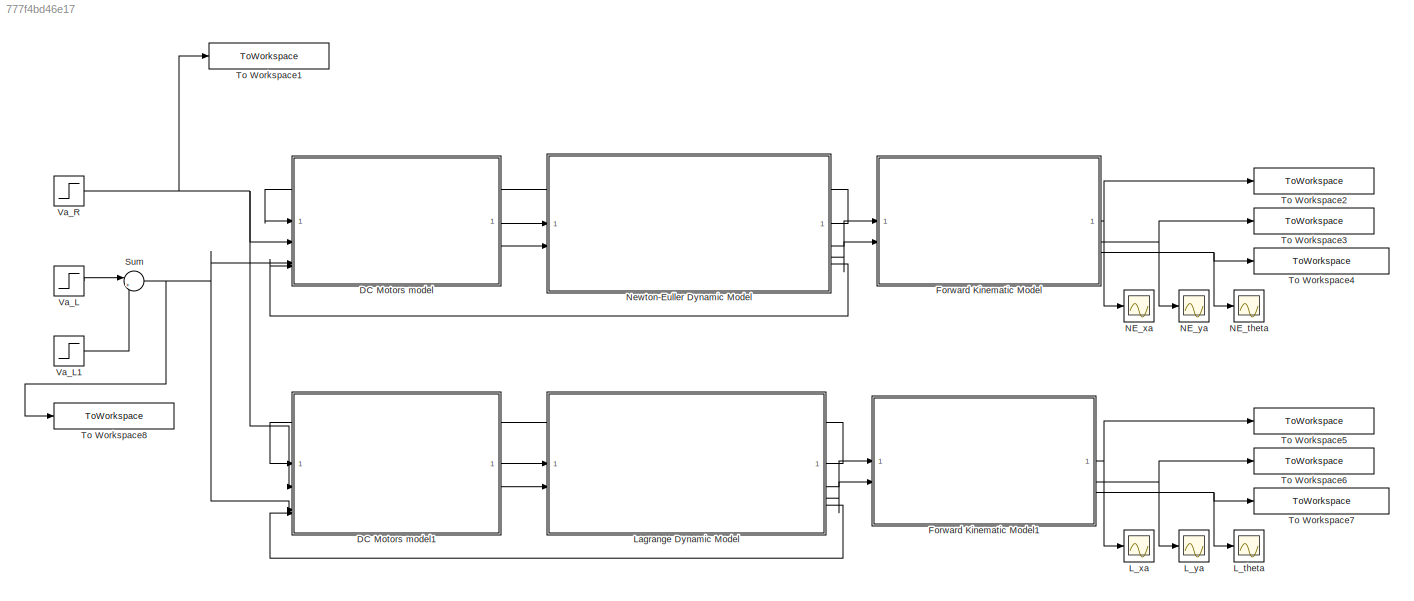
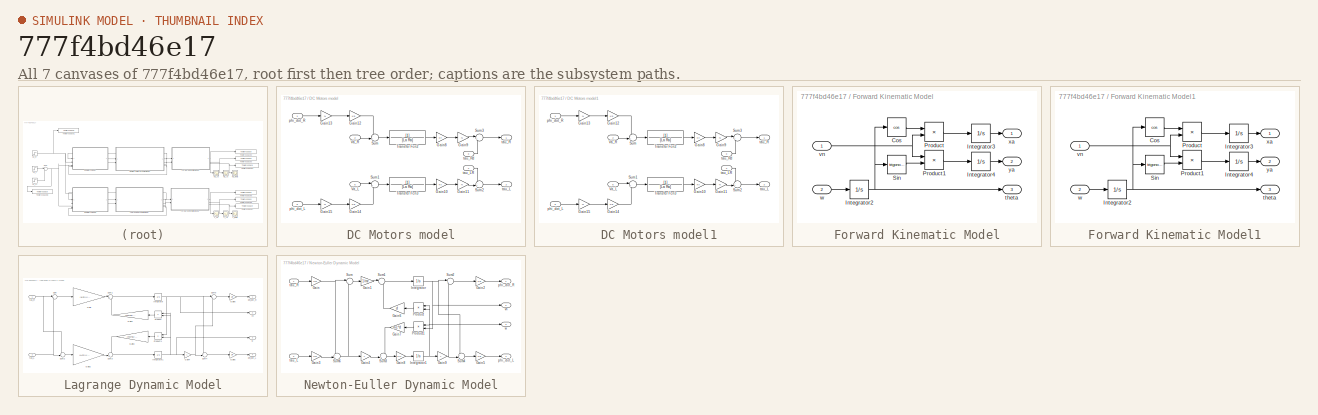
[diagram: thumbnail index - all 7 canvases of the model, root first then tree order]
MODEL slx_777f4bd46e17
KIND model
CONFIG AbsTol = auto
CONFIG EnableMultiTasking = off
CONFIG FixedStep = auto
CONFIG MaxStep = auto
CONFIG MinStep = auto
CONFIG RelTol = 1e-3
CONFIG SampleTimeConstraint = Unconstrained
CONFIG SolverName = VariableStepAuto
CONFIG StartTime = 0.0
CONFIG StopTime = 20
BLOCK [SubSystem] DC Motors model
BLOCK [Gain] DC Motors model/Gain10
  Gain = Kt
BLOCK [Gain] DC Motors model/Gain11
  Gain = N
BLOCK [Gain] DC Motors model/Gain12
  Gain = Kb
BLOCK [Gain] DC Motors model/Gain13
  Gain = N
BLOCK [Gain] DC Motors model/Gain14
  Gain = Kb
BLOCK [Gain] DC Motors model/Gain15
  Gain = N
BLOCK [Gain] DC Motors model/Gain8
  Gain = Kt
BLOCK [Gain] DC Motors model/Gain9
  Gain = N
BLOCK [Sum] DC Motors model/Sum
  Inputs = -+|
BLOCK [Sum] DC Motors model/Sum1
  Inputs = |+-
BLOCK [Sum] DC Motors model/Sum2
  Inputs = -+|
BLOCK [Sum] DC Motors model/Sum3
  Inputs = |+-
BLOCK [TransferFcn] DC Motors model/Transfer Fcn2
  Denominator = [La Ra]
BLOCK [TransferFcn] DC Motors model/Transfer Fcn3
  Denominator = [La Ra]
BLOCK [Inport] DC Motors model/Va_L
  NameLocation = left
  Port = 5
BLOCK [Inport] DC Motors model/Va_R
  NameLocation = left
  Port = 2
BLOCK [Inport] DC Motors model/phi_dot_L
  Port = 6
BLOCK [Inport] DC Motors model/phi_dot_R
BLOCK [Outport] DC Motors model/tau_L
  NameLocation = top
  Port = 2
BLOCK [Inport] DC Motors model/tau_LR
  NameLocation = left
  Port = 4
BLOCK [Outport] DC Motors model/tau_R
BLOCK [Inport] DC Motors model/tau_Rd
  NameLocation = left
  Port = 3
BLOCK [SubSystem] DC Motors model1
BLOCK [Gain] DC Motors model1/Gain10
  Gain = Kt
BLOCK [Gain] DC Motors model1/Gain11
  Gain = N
BLOCK [Gain] DC Motors model1/Gain12
  Gain = Kb
BLOCK [Gain] DC Motors model1/Gain13
  Gain = N
BLOCK [Gain] DC Motors model1/Gain14
  Gain = Kb
BLOCK [Gain] DC Motors model1/Gain15
  Gain = N
BLOCK [Gain] DC Motors model1/Gain8
  Gain = Kt
BLOCK [Gain] DC Motors model1/Gain9
  Gain = N
BLOCK [Sum] DC Motors model1/Sum
  Inputs = -+|
BLOCK [Sum] DC Motors model1/Sum1
  Inputs = |+-
BLOCK [Sum] DC Motors model1/Sum2
  Inputs = -+|
BLOCK [Sum] DC Motors model1/Sum3
  Inputs = |+-
BLOCK [TransferFcn] DC Motors model1/Transfer Fcn2
  Denominator = [La Ra]
BLOCK [TransferFcn] DC Motors model1/Transfer Fcn3
  Denominator = [La Ra]
BLOCK [Inport] DC Motors model1/Va_L
  NameLocation = left
  Port = 5
BLOCK [Inport] DC Motors model1/Va_R
  NameLocation = left
  Port = 2
BLOCK [Inport] DC Motors model1/phi_dot_L
  Port = 6
BLOCK [Inport] DC Motors model1/phi_dot_R
BLOCK [Outport] DC Motors model1/tau_L
  NameLocation = top
  Port = 2
BLOCK [Inport] DC Motors model1/tau_LR
  NameLocation = left
  Port = 4
BLOCK [Outport] DC Motors model1/tau_R
BLOCK [Inport] DC Motors model1/tau_Rd
  NameLocation = left
  Port = 3
BLOCK [SubSystem] Forward Kinematic Model
BLOCK [Trigonometry] Forward Kinematic Model/Cos
  Operator = cos
BLOCK [Integrator] Forward Kinematic Model/Integrator2
BLOCK [Integrator] Forward Kinematic Model/Integrator3
BLOCK [Integrator] Forward Kinematic Model/Integrator4
BLOCK [Product] Forward Kinematic Model/Product
BLOCK [Product] Forward Kinematic Model/Product1
BLOCK [Trigonometry] Forward Kinematic Model/Sin
BLOCK [Outport] Forward Kinematic Model/theta
  Port = 3
BLOCK [Inport] Forward Kinematic Model/vn
BLOCK [Inport] Forward Kinematic Model/w
  Port = 2
BLOCK [Outport] Forward Kinematic Model/xa
BLOCK [Outport] Forward Kinematic Model/ya
  Port = 2
BLOCK [SubSystem] Forward Kinematic Model1
BLOCK [Trigonometry] Forward Kinematic Model1/Cos
  Operator = cos
BLOCK [Integrator] Forward Kinematic Model1/Integrator2
BLOCK [Integrator] Forward Kinematic Model1/Integrator3
BLOCK [Integrator] Forward Kinematic Model1/Integrator4
BLOCK [Product] Forward Kinematic Model1/Product
BLOCK [Product] Forward Kinematic Model1/Product1
BLOCK [Trigonometry] Forward Kinematic Model1/Sin
BLOCK [Outport] Forward Kinematic Model1/theta
  Port = 3
BLOCK [Inport] Forward Kinematic Model1/vn
BLOCK [Inport] Forward Kinematic Model1/w
  Port = 2
BLOCK [Outport] Forward Kinematic Model1/xa
BLOCK [Outport] Forward Kinematic Model1/ya
  Port = 2
BLOCK [Scope] L_theta
  Floating = off
  NumInputPorts = 1
  ScopeSpecificationString = Simulink.scopes.TimeScopeBlockCfg('CurrentConfiguration', extmgr.ConfigurationSet(extmgr.Configuration('Core','General UI',true),extmgr.Configuration('Core','Source UI',true),extmgr.Configuration('Sources','WiredSimulink',true,'DataLoggingVariableName','ScopeData8'),extmgr.Configuration('Visuals','Time Domain',true),extmgr.Configuration('Tools','Plot Navigation',true),extmgr.Configuration('Tools',...<+40ch>
BLOCK [Scope] L_xa
  Floating = off
  NumInputPorts = 1
  ScopeSpecificationString = Simulink.scopes.TimeScopeBlockCfg('CurrentConfiguration', extmgr.ConfigurationSet(extmgr.Configuration('Core','General UI',true),extmgr.Configuration('Core','Source UI',true),extmgr.Configuration('Sources','WiredSimulink',true,'DataLoggingVariableName','ScopeData9'),extmgr.Configuration('Visuals','Time Domain',true),extmgr.Configuration('Tools','Plot Navigation',true),extmgr.Configuration('Tools',...<+40ch>
BLOCK [Scope] L_ya
  Floating = off
  NumInputPorts = 1
  ScopeSpecificationString = Simulink.scopes.TimeScopeBlockCfg('CurrentConfiguration', extmgr.ConfigurationSet(extmgr.Configuration('Core','General UI',true),extmgr.Configuration('Core','Source UI',true),extmgr.Configuration('Sources','WiredSimulink',true,'DataLoggingVariableName','ScopeData10'),extmgr.Configuration('Visuals','Time Domain',true),extmgr.Configuration('Tools','Plot Navigation',true),extmgr.Configuration('Tools'...<+41ch>
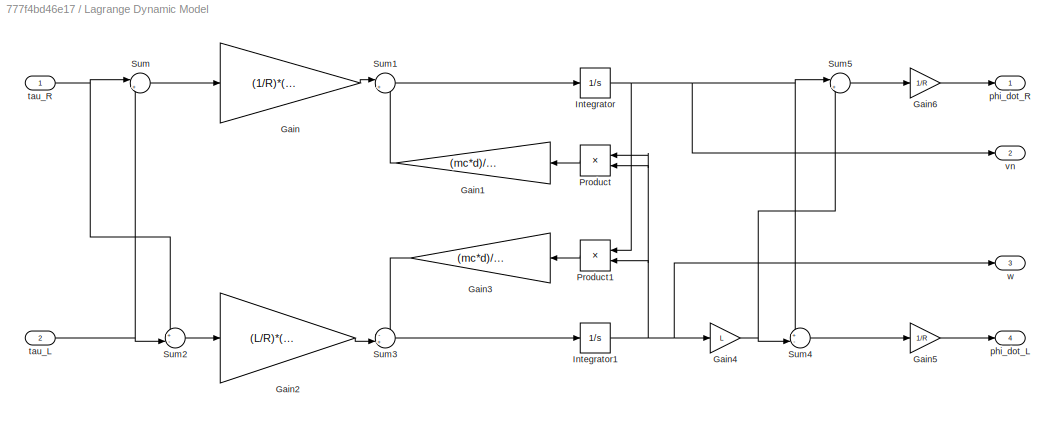
BLOCK [SubSystem] Lagrange Dynamic Model
BLOCK [Gain] Lagrange Dynamic Model/Gain
  Gain = (1/R)*(1/(m+(2*Iw)/(R*R)))
BLOCK [Gain] Lagrange Dynamic Model/Gain1
  Gain = (mc*d)/(m+(2*Iw)/(R*R))
  NameLocation = top
BLOCK [Gain] Lagrange Dynamic Model/Gain2
  Gain = (L/R)*(1/(I+(2*L*L*Iw)/R))
BLOCK [Gain] Lagrange Dynamic Model/Gain3
  Gain = (mc*d)/(I+(2*L*L*Iw)/R)
  NameLocation = top
BLOCK [Gain] Lagrange Dynamic Model/Gain4
  Gain = L
BLOCK [Gain] Lagrange Dynamic Model/Gain5
  Gain = 1/R
BLOCK [Gain] Lagrange Dynamic Model/Gain6
  Gain = 1/R
BLOCK [Integrator] Lagrange Dynamic Model/Integrator
BLOCK [Integrator] Lagrange Dynamic Model/Integrator1
BLOCK [Product] Lagrange Dynamic Model/Product
  NameLocation = top
BLOCK [Product] Lagrange Dynamic Model/Product1
  NameLocation = top
BLOCK [Sum] Lagrange Dynamic Model/Sum
  Inputs = |++
BLOCK [Sum] Lagrange Dynamic Model/Sum1
  Inputs = |++
BLOCK [Sum] Lagrange Dynamic Model/Sum2
  Inputs = +-|
BLOCK [Sum] Lagrange Dynamic Model/Sum3
  Inputs = -+|
BLOCK [Sum] Lagrange Dynamic Model/Sum4
  Inputs = +-|
BLOCK [Sum] Lagrange Dynamic Model/Sum5
  Inputs = |++
BLOCK [Outport] Lagrange Dynamic Model/phi_dot_L
  Port = 4
BLOCK [Outport] Lagrange Dynamic Model/phi_dot_R
BLOCK [Inport] Lagrange Dynamic Model/tau_L
  NameLocation = left
  Port = 2
BLOCK [Inport] Lagrange Dynamic Model/tau_R
  NameLocation = left
BLOCK [Outport] Lagrange Dynamic Model/vn
  Port = 2
BLOCK [Outport] Lagrange Dynamic Model/w
  Port = 3
BLOCK [Scope] NE_theta
  Floating = off
  NumInputPorts = 1
  ScopeSpecificationString = Simulink.scopes.TimeScopeBlockCfg('CurrentConfiguration', extmgr.ConfigurationSet(extmgr.Configuration('Core','General UI',true),extmgr.Configuration('Core','Source UI',true),extmgr.Configuration('Sources','WiredSimulink',true,'DataLoggingVariableName','ScopeData7'),extmgr.Configuration('Visuals','Time Domain',true),extmgr.Configuration('Tools','Plot Navigation',true),extmgr.Configuration('Tools',...<+40ch>
BLOCK [Scope] NE_xa
  Floating = off
  NumInputPorts = 1
  ScopeSpecificationString = Simulink.scopes.TimeScopeBlockCfg('CurrentConfiguration', extmgr.ConfigurationSet(extmgr.Configuration('Core','General UI',true),extmgr.Configuration('Core','Source UI',true),extmgr.Configuration('Sources','WiredSimulink',true),extmgr.Configuration('Visuals','Time Domain',true),extmgr.Configuration('Tools','Plot Navigation',true),extmgr.Configuration('Tools','Measurements',true)),'Version','2023a'...<+1ch>
BLOCK [Scope] NE_ya
  Floating = off
  NumInputPorts = 1
  ScopeSpecificationString = Simulink.scopes.TimeScopeBlockCfg('CurrentConfiguration', extmgr.ConfigurationSet(extmgr.Configuration('Core','General UI',true),extmgr.Configuration('Core','Source UI',true),extmgr.Configuration('Sources','WiredSimulink',true,'DataLoggingVariableName','ScopeData1'),extmgr.Configuration('Visuals','Time Domain',true),extmgr.Configuration('Tools','Plot Navigation',true),extmgr.Configuration('Tools',...<+40ch>
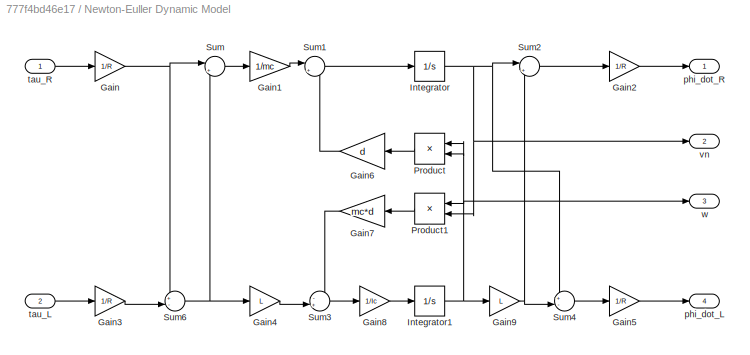
BLOCK [SubSystem] Newton-Euller Dynamic Model
BLOCK [Gain] Newton-Euller Dynamic Model/Gain
  Gain = 1/R
BLOCK [Gain] Newton-Euller Dynamic Model/Gain1
  Gain = 1/mc
BLOCK [Gain] Newton-Euller Dynamic Model/Gain2
  Gain = 1/R
BLOCK [Gain] Newton-Euller Dynamic Model/Gain3
  Gain = 1/R
BLOCK [Gain] Newton-Euller Dynamic Model/Gain4
  Gain = L
BLOCK [Gain] Newton-Euller Dynamic Model/Gain5
  Gain = 1/R
BLOCK [Gain] Newton-Euller Dynamic Model/Gain6
  Gain = d
  NameLocation = top
BLOCK [Gain] Newton-Euller Dynamic Model/Gain7
  Gain = mc*d
  NameLocation = top
BLOCK [Gain] Newton-Euller Dynamic Model/Gain8
  Gain = 1/Ic
BLOCK [Gain] Newton-Euller Dynamic Model/Gain9
  Gain = L
BLOCK [Integrator] Newton-Euller Dynamic Model/Integrator
BLOCK [Integrator] Newton-Euller Dynamic Model/Integrator1
BLOCK [Product] Newton-Euller Dynamic Model/Product
  NameLocation = top
BLOCK [Product] Newton-Euller Dynamic Model/Product1
  NameLocation = top
BLOCK [Sum] Newton-Euller Dynamic Model/Sum
  Inputs = |++
BLOCK [Sum] Newton-Euller Dynamic Model/Sum1
  Inputs = |++
BLOCK [Sum] Newton-Euller Dynamic Model/Sum2
  Inputs = |++
BLOCK [Sum] Newton-Euller Dynamic Model/Sum3
  Inputs = -+|
BLOCK [Sum] Newton-Euller Dynamic Model/Sum4
  Inputs = +-|
BLOCK [Sum] Newton-Euller Dynamic Model/Sum6
  Inputs = +-|
BLOCK [Outport] Newton-Euller Dynamic Model/phi_dot_L
  Port = 4
BLOCK [Outport] Newton-Euller Dynamic Model/phi_dot_R
BLOCK [Inport] Newton-Euller Dynamic Model/tau_L
  Port = 2
BLOCK [Inport] Newton-Euller Dynamic Model/tau_R
BLOCK [Outport] Newton-Euller Dynamic Model/vn
  Port = 2
BLOCK [Outport] Newton-Euller Dynamic Model/w
  Port = 3
BLOCK [Sum] Sum
  Inputs = |++
BLOCK [ToWorkspace] To Workspace1
  FixptAsFi = on
  MaxDataPoints = inf
  SampleTime = -1
  SaveFormat = Structure With Time
  VariableName = Va_R
BLOCK [ToWorkspace] To Workspace2
  FixptAsFi = on
  MaxDataPoints = inf
  SampleTime = -1
  SaveFormat = Structure With Time
  VariableName = NewtonEuller_xa
BLOCK [ToWorkspace] To Workspace3
  FixptAsFi = on
  MaxDataPoints = inf
  SampleTime = -1
  SaveFormat = Structure With Time
  VariableName = NewtonEuller_ya
BLOCK [ToWorkspace] To Workspace4
  FixptAsFi = on
  MaxDataPoints = inf
  SampleTime = -1
  SaveFormat = Structure With Time
  VariableName = NewtonEuller_theta
BLOCK [ToWorkspace] To Workspace5
  FixptAsFi = on
  MaxDataPoints = inf
  SampleTime = -1
  SaveFormat = Structure With Time
  VariableName = Lagrange_xa
BLOCK [ToWorkspace] To Workspace6
  FixptAsFi = on
  MaxDataPoints = inf
  SampleTime = -1
  SaveFormat = Structure With Time
  VariableName = Lagrange_ya
BLOCK [ToWorkspace] To Workspace7
  FixptAsFi = on
  MaxDataPoints = inf
  SampleTime = -1
  SaveFormat = Structure With Time
  VariableName = Lagrange_theta
BLOCK [ToWorkspace] To Workspace8
  FixptAsFi = on
  MaxDataPoints = inf
  SampleTime = -1
  SaveFormat = Structure With Time
  VariableName = Va_L
BLOCK [Step] Va_L
  After = 0
  Before = 2
  NameLocation = left
  SampleTime = 0
  Time = 9.47
BLOCK [Step] Va_L1
  After = 2
  NameLocation = left
  SampleTime = 0
  Time = 2*9.47
BLOCK [Step] Va_R
  After = 2
  NameLocation = left
  SampleTime = 0
  Time = 9.47
LINE DC Motors model/Gain10:1 -> DC Motors model/Gain11:1
LINE DC Motors model/Gain11:1 -> DC Motors model/Sum2:2
LINE DC Motors model/Gain12:1 -> DC Motors model/Sum:1
LINE DC Motors model/Gain13:1 -> DC Motors model/Gain12:1
LINE DC Motors model/Gain14:1 -> DC Motors model/Sum1:2
LINE DC Motors model/Gain15:1 -> DC Motors model/Gain14:1
LINE DC Motors model/Gain8:1 -> DC Motors model/Gain9:1
LINE DC Motors model/Gain9:1 -> DC Motors model/Sum3:1
LINE DC Motors model/Sum1:1 -> DC Motors model/Transfer Fcn3:1
LINE DC Motors model/Sum2:1 -> DC Motors model/tau_L:1
LINE DC Motors model/Sum3:1 -> DC Motors model/tau_R:1
LINE DC Motors model/Sum:1 -> DC Motors model/Transfer Fcn2:1
LINE DC Motors model/Transfer Fcn2:1 -> DC Motors model/Gain8:1
LINE DC Motors model/Transfer Fcn3:1 -> DC Motors model/Gain10:1
LINE DC Motors model/Va_L:1 -> DC Motors model/Sum1:1
LINE DC Motors model/Va_R:1 -> DC Motors model/Sum:2
LINE DC Motors model/phi_dot_L:1 -> DC Motors model/Gain15:1
LINE DC Motors model/phi_dot_R:1 -> DC Motors model/Gain13:1
LINE DC Motors model/tau_LR:1 -> DC Motors model/Sum2:1
LINE DC Motors model/tau_Rd:1 -> DC Motors model/Sum3:2
LINE DC Motors model1/Gain10:1 -> DC Motors model1/Gain11:1
LINE DC Motors model1/Gain11:1 -> DC Motors model1/Sum2:2
LINE DC Motors model1/Gain12:1 -> DC Motors model1/Sum:1
LINE DC Motors model1/Gain13:1 -> DC Motors model1/Gain12:1
LINE DC Motors model1/Gain14:1 -> DC Motors model1/Sum1:2
LINE DC Motors model1/Gain15:1 -> DC Motors model1/Gain14:1
LINE DC Motors model1/Gain8:1 -> DC Motors model1/Gain9:1
LINE DC Motors model1/Gain9:1 -> DC Motors model1/Sum3:1
LINE DC Motors model1/Sum1:1 -> DC Motors model1/Transfer Fcn3:1
LINE DC Motors model1/Sum2:1 -> DC Motors model1/tau_L:1
LINE DC Motors model1/Sum3:1 -> DC Motors model1/tau_R:1
LINE DC Motors model1/Sum:1 -> DC Motors model1/Transfer Fcn2:1
LINE DC Motors model1/Transfer Fcn2:1 -> DC Motors model1/Gain8:1
LINE DC Motors model1/Transfer Fcn3:1 -> DC Motors model1/Gain10:1
LINE DC Motors model1/Va_L:1 -> DC Motors model1/Sum1:1
LINE DC Motors model1/Va_R:1 -> DC Motors model1/Sum:2
LINE DC Motors model1/phi_dot_L:1 -> DC Motors model1/Gain15:1
LINE DC Motors model1/phi_dot_R:1 -> DC Motors model1/Gain13:1
LINE DC Motors model1/tau_LR:1 -> DC Motors model1/Sum2:1
LINE DC Motors model1/tau_Rd:1 -> DC Motors model1/Sum3:2
LINE DC Motors model1:1 -> Lagrange Dynamic Model:1
LINE DC Motors model1:2 -> Lagrange Dynamic Model:2
LINE DC Motors model:1 -> Newton-Euller Dynamic Model:1
LINE DC Motors model:2 -> Newton-Euller Dynamic Model:2
LINE Forward Kinematic Model/Cos:1 -> Forward Kinematic Model/Product:1
NET Forward Kinematic Model/Integrator2:1 -> Forward Kinematic Model/Cos:1, Forward Kinematic Model/Sin:1, Forward Kinematic Model/theta:1
LINE Forward Kinematic Model/Integrator3:1 -> Forward Kinematic Model/xa:1
LINE Forward Kinematic Model/Integrator4:1 -> Forward Kinematic Model/ya:1
LINE Forward Kinematic Model/Product1:1 -> Forward Kinematic Model/Integrator4:1
LINE Forward Kinematic Model/Product:1 -> Forward Kinematic Model/Integrator3:1
LINE Forward Kinematic Model/Sin:1 -> Forward Kinematic Model/Product1:2
NET Forward Kinematic Model/vn:1 -> Forward Kinematic Model/Product1:1, Forward Kinematic Model/Product:2
LINE Forward Kinematic Model/w:1 -> Forward Kinematic Model/Integrator2:1
LINE Forward Kinematic Model1/Cos:1 -> Forward Kinematic Model1/Product:1
NET Forward Kinematic Model1/Integrator2:1 -> Forward Kinematic Model1/Cos:1, Forward Kinematic Model1/Sin:1, Forward Kinematic Model1/theta:1
LINE Forward Kinematic Model1/Integrator3:1 -> Forward Kinematic Model1/xa:1
LINE Forward Kinematic Model1/Integrator4:1 -> Forward Kinematic Model1/ya:1
LINE Forward Kinematic Model1/Product1:1 -> Forward Kinematic Model1/Integrator4:1
LINE Forward Kinematic Model1/Product:1 -> Forward Kinematic Model1/Integrator3:1
LINE Forward Kinematic Model1/Sin:1 -> Forward Kinematic Model1/Product1:2
NET Forward Kinematic Model1/vn:1 -> Forward Kinematic Model1/Product1:1, Forward Kinematic Model1/Product:2
LINE Forward Kinematic Model1/w:1 -> Forward Kinematic Model1/Integrator2:1
NET Forward Kinematic Model1:1 -> L_xa:1, To Workspace5:1
NET Forward Kinematic Model1:2 -> L_ya:1, To Workspace6:1
NET Forward Kinematic Model1:3 -> L_theta:1, To Workspace7:1
NET Forward Kinematic Model:1 -> NE_xa:1, To Workspace2:1
NET Forward Kinematic Model:2 -> NE_ya:1, To Workspace3:1
NET Forward Kinematic Model:3 -> NE_theta:1, To Workspace4:1
LINE Lagrange Dynamic Model/Gain1:1 -> Lagrange Dynamic Model/Sum1:2
LINE Lagrange Dynamic Model/Gain2:1 -> Lagrange Dynamic Model/Sum3:2
LINE Lagrange Dynamic Model/Gain3:1 -> Lagrange Dynamic Model/Sum3:1
NET Lagrange Dynamic Model/Gain4:1 -> Lagrange Dynamic Model/Sum4:2, Lagrange Dynamic Model/Sum5:2
LINE Lagrange Dynamic Model/Gain5:1 -> Lagrange Dynamic Model/phi_dot_L:1
LINE Lagrange Dynamic Model/Gain6:1 -> Lagrange Dynamic Model/phi_dot_R:1
LINE Lagrange Dynamic Model/Gain:1 -> Lagrange Dynamic Model/Sum1:1
NET Lagrange Dynamic Model/Integrator1:1 -> Lagrange Dynamic Model/Gain4:1, Lagrange Dynamic Model/Product1:2, Lagrange Dynamic Model/Product:1, Lagrange Dynamic Model/Product:2, Lagrange Dynamic Model/w:1
NET Lagrange Dynamic Model/Integrator:1 -> Lagrange Dynamic Model/Product1:1, Lagrange Dynamic Model/Sum4:1, Lagrange Dynamic Model/Sum5:1, Lagrange Dynamic Model/vn:1
LINE Lagrange Dynamic Model/Product1:1 -> Lagrange Dynamic Model/Gain3:1
LINE Lagrange Dynamic Model/Product:1 -> Lagrange Dynamic Model/Gain1:1
LINE Lagrange Dynamic Model/Sum1:1 -> Lagrange Dynamic Model/Integrator:1
LINE Lagrange Dynamic Model/Sum2:1 -> Lagrange Dynamic Model/Gain2:1
LINE Lagrange Dynamic Model/Sum3:1 -> Lagrange Dynamic Model/Integrator1:1
LINE Lagrange Dynamic Model/Sum4:1 -> Lagrange Dynamic Model/Gain5:1
LINE Lagrange Dynamic Model/Sum5:1 -> Lagrange Dynamic Model/Gain6:1
LINE Lagrange Dynamic Model/Sum:1 -> Lagrange Dynamic Model/Gain:1
NET Lagrange Dynamic Model/tau_L:1 -> Lagrange Dynamic Model/Sum2:2, Lagrange Dynamic Model/Sum:2
NET Lagrange Dynamic Model/tau_R:1 -> Lagrange Dynamic Model/Sum2:1, Lagrange Dynamic Model/Sum:1
LINE Lagrange Dynamic Model:1 -> DC Motors model1:1
LINE Lagrange Dynamic Model:2 -> Forward Kinematic Model1:1
LINE Lagrange Dynamic Model:3 -> Forward Kinematic Model1:2
LINE Lagrange Dynamic Model:4 -> DC Motors model1:6
LINE Newton-Euller Dynamic Model/Gain1:1 -> Newton-Euller Dynamic Model/Sum1:1
LINE Newton-Euller Dynamic Model/Gain2:1 -> Newton-Euller Dynamic Model/phi_dot_R:1
LINE Newton-Euller Dynamic Model/Gain3:1 -> Newton-Euller Dynamic Model/Sum6:2
LINE Newton-Euller Dynamic Model/Gain4:1 -> Newton-Euller Dynamic Model/Sum3:2
LINE Newton-Euller Dynamic Model/Gain5:1 -> Newton-Euller Dynamic Model/phi_dot_L:1
LINE Newton-Euller Dynamic Model/Gain6:1 -> Newton-Euller Dynamic Model/Sum1:2
LINE Newton-Euller Dynamic Model/Gain7:1 -> Newton-Euller Dynamic Model/Sum3:1
LINE Newton-Euller Dynamic Model/Gain8:1 -> Newton-Euller Dynamic Model/Integrator1:1
NET Newton-Euller Dynamic Model/Gain9:1 -> Newton-Euller Dynamic Model/Sum2:2, Newton-Euller Dynamic Model/Sum4:2
NET Newton-Euller Dynamic Model/Gain:1 -> Newton-Euller Dynamic Model/Sum6:1, Newton-Euller Dynamic Model/Sum:1
NET Newton-Euller Dynamic Model/Integrator1:1 -> Newton-Euller Dynamic Model/Gain9:1, Newton-Euller Dynamic Model/Product1:1, Newton-Euller Dynamic Model/Product:1, Newton-Euller Dynamic Model/Product:2, Newton-Euller Dynamic Model/w:1
NET Newton-Euller Dynamic Model/Integrator:1 -> Newton-Euller Dynamic Model/Product1:2, Newton-Euller Dynamic Model/Sum2:1, Newton-Euller Dynamic Model/Sum4:1, Newton-Euller Dynamic Model/vn:1
LINE Newton-Euller Dynamic Model/Product1:1 -> Newton-Euller Dynamic Model/Gain7:1
LINE Newton-Euller Dynamic Model/Product:1 -> Newton-Euller Dynamic Model/Gain6:1
LINE Newton-Euller Dynamic Model/Sum1:1 -> Newton-Euller Dynamic Model/Integrator:1
LINE Newton-Euller Dynamic Model/Sum2:1 -> Newton-Euller Dynamic Model/Gain2:1
LINE Newton-Euller Dynamic Model/Sum3:1 -> Newton-Euller Dynamic Model/Gain8:1
LINE Newton-Euller Dynamic Model/Sum4:1 -> Newton-Euller Dynamic Model/Gain5:1
NET Newton-Euller Dynamic Model/Sum6:1 -> Newton-Euller Dynamic Model/Gain4:1, Newton-Euller Dynamic Model/Sum:2
LINE Newton-Euller Dynamic Model/Sum:1 -> Newton-Euller Dynamic Model/Gain1:1
LINE Newton-Euller Dynamic Model/tau_L:1 -> Newton-Euller Dynamic Model/Gain3:1
LINE Newton-Euller Dynamic Model/tau_R:1 -> Newton-Euller Dynamic Model/Gain:1
LINE Newton-Euller Dynamic Model:1 -> DC Motors model:1
LINE Newton-Euller Dynamic Model:2 -> Forward Kinematic Model:1
LINE Newton-Euller Dynamic Model:3 -> Forward Kinematic Model:2
LINE Newton-Euller Dynamic Model:4 -> DC Motors model:6
NET Sum:1 -> DC Motors model1:5, DC Motors model:5, To Workspace8:1
LINE Va_L1:1 -> Sum:2
LINE Va_L:1 -> Sum:1
NET Va_R:1 -> DC Motors model1:2, DC Motors model:2, To Workspace1:1
note: NET lines group one-source signal fan-out (src -> all destinations, sorted); 1:1 wires keep LINE
